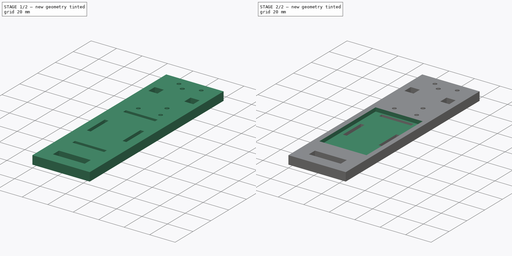
[diagram: build sequence overview — one tinted view per stage of 2, left to right]
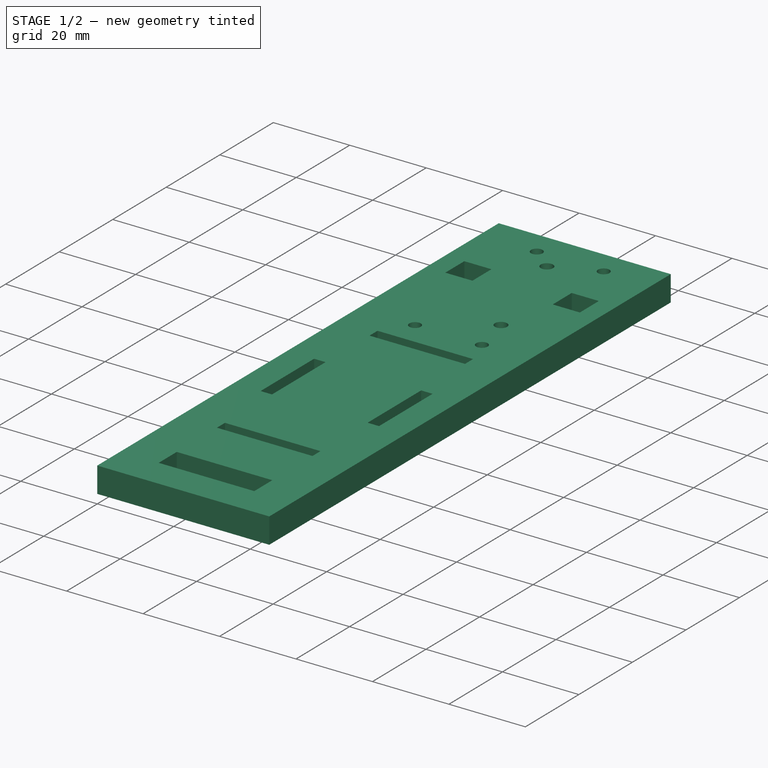
[diagram: stage 1 of 2 — iso view after this stage's code; geometry added in this stage tinted green]
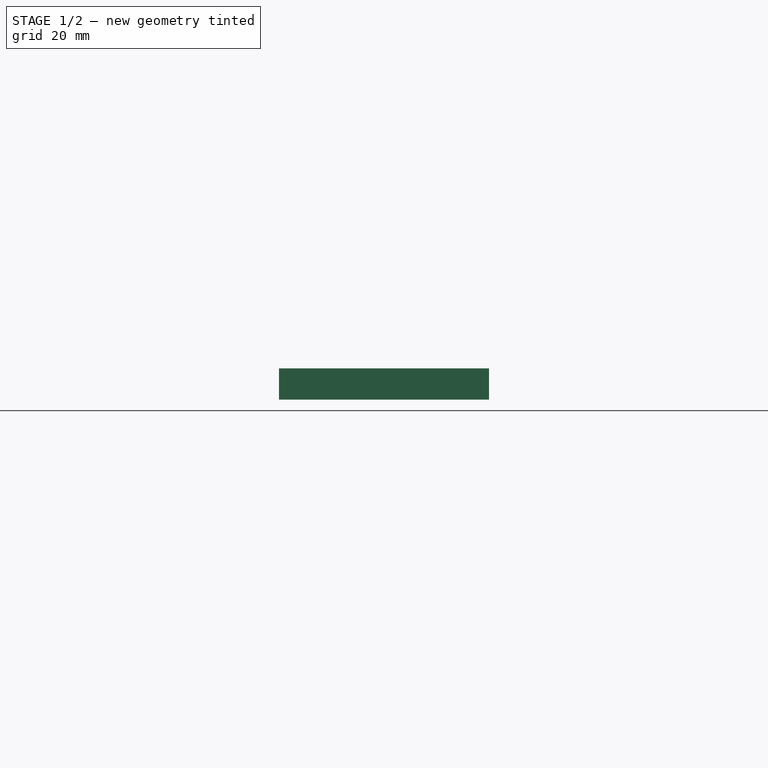
[diagram: stage 1 of 2 — front view after this stage's code; geometry added in this stage tinted green]
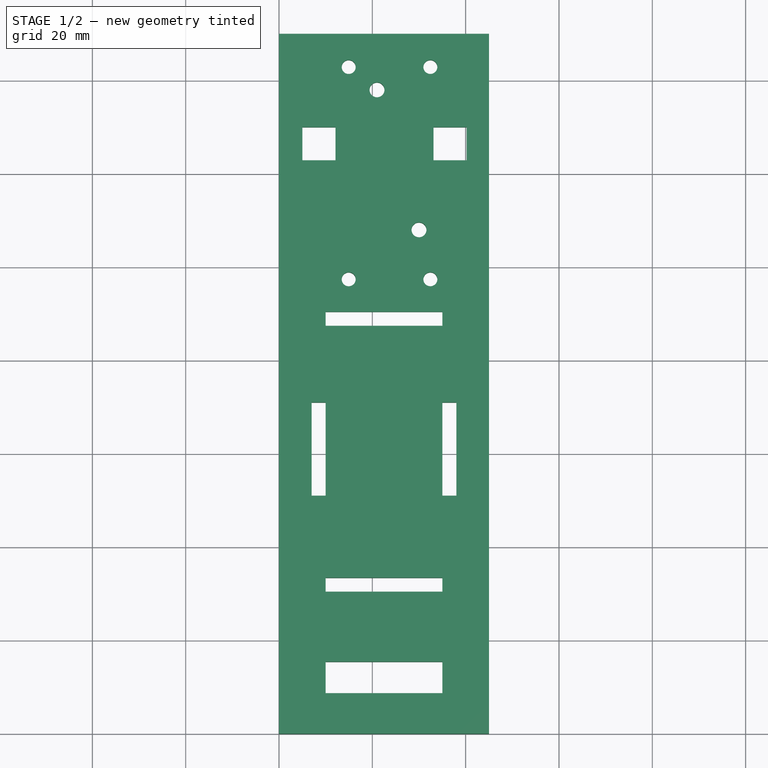
[diagram: stage 1 of 2 — top view after this stage's code; geometry added in this stage tinted green]
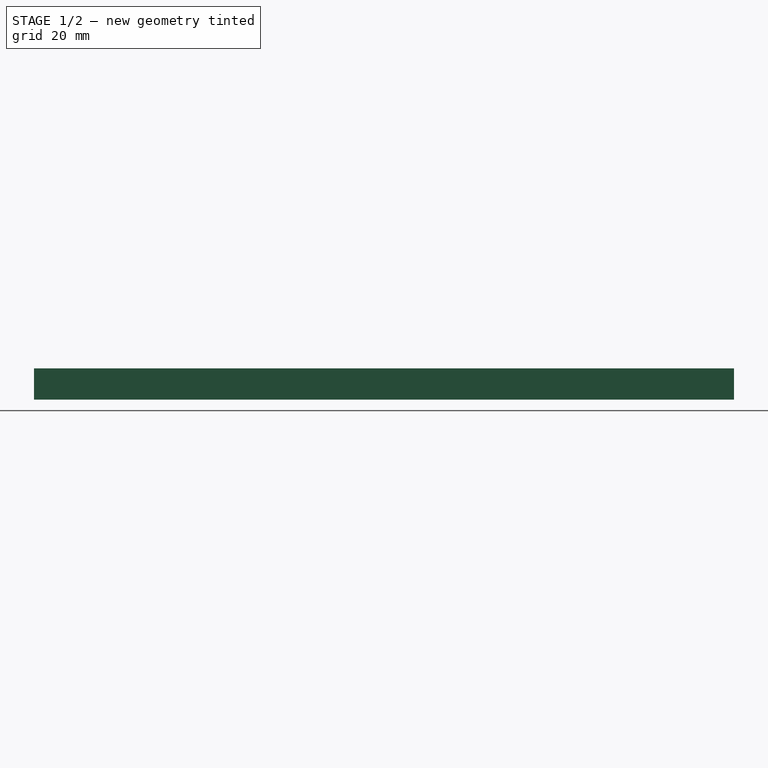
[diagram: stage 1 of 2 — right view after this stage's code; geometry added in this stage tinted green]
FCSTD DOCUMENT  (FreeCAD 0.18R16117 (Git))
Label: sled
License: All rights reserved
LicenseURL: http://en.wikipedia.org/wiki/All_rights_reserved
objects: Sketcher::SketchObject×2, PartDesign::Pad×1, PartDesign::Pocket×1, PartDesign::Body×1
note: 7 computed .brp shape members not serialized (recipe doc carries the construction recipe); baked Part::Feature solids carry a one-line shape summary decoded from their .brp

FEATURE [Sketcher::SketchObject] Sketch
  MapMode = 5
  Support = -> [XY_Plane]
  sketch-geometry (41):
    g0: LineSegment StartX=0 StartY=0 StartZ=0 EndX=45 EndY=0 EndZ=0
    g1: LineSegment StartX=45 StartY=0 StartZ=0 EndX=45 EndY=150 EndZ=0
    g2: LineSegment StartX=45 StartY=150 StartZ=0 EndX=0 EndY=150 EndZ=0
    g3: LineSegment StartX=0 StartY=150 StartZ=0 EndX=0 EndY=0 EndZ=0
    g4: Circle CenterX=14.9331 CenterY=142.9 CenterZ=0 NormalX=0 NormalY=0 NormalZ=1 AngleXU=0 Radius=1.5
    g5: Circle CenterX=14.9331 CenterY=97.3995 CenterZ=0 NormalX=0 NormalY=0 NormalZ=1 AngleXU=0 Radius=1.5
    g6: Circle CenterX=32.4331 CenterY=97.3995 CenterZ=0 NormalX=0 NormalY=0 NormalZ=1 AngleXU=0 Radius=1.5
    g7: Circle CenterX=32.4331 CenterY=142.9 CenterZ=0 NormalX=0 NormalY=0 NormalZ=1 AngleXU=0 Radius=1.5
    g8: LineSegment StartX=10 StartY=15.4272 StartZ=0 EndX=35 EndY=15.4272 EndZ=0
    g9: LineSegment StartX=35 StartY=15.4272 StartZ=0 EndX=35 EndY=8.67725 EndZ=0
    g10: LineSegment StartX=35 StartY=8.67725 StartZ=0 EndX=10 EndY=8.67725 EndZ=0
    g11: LineSegment StartX=10 StartY=8.67725 StartZ=0 EndX=10 EndY=15.4272 EndZ=0
    g12: LineSegment StartX=10 StartY=87.429 StartZ=0 EndX=35 EndY=87.429 EndZ=0
    g13: LineSegment StartX=35 StartY=87.429 StartZ=0 EndX=35 EndY=90.429 EndZ=0
    g14: LineSegment StartX=35 StartY=90.429 StartZ=0 EndX=10 EndY=90.429 EndZ=0
    g15: LineSegment StartX=10 StartY=90.429 StartZ=0 EndX=10 EndY=87.429 EndZ=0
    g16: LineSegment StartX=10 StartY=33.429 StartZ=0 EndX=35 EndY=33.429 EndZ=0
    g17: LineSegment StartX=35 StartY=33.429 StartZ=0 EndX=35 EndY=30.429 EndZ=0
    g18: LineSegment StartX=35 StartY=30.429 StartZ=0 EndX=10 EndY=30.429 EndZ=0
    g19: LineSegment StartX=10 StartY=30.429 StartZ=0 EndX=10 EndY=33.429 EndZ=0
    g20: LineSegment StartX=7 StartY=71.0195 StartZ=0 EndX=10 EndY=71.0195 EndZ=0
    g21: LineSegment StartX=10 StartY=71.0195 StartZ=0 EndX=10 EndY=51.0195 EndZ=0
    g22: LineSegment StartX=10 StartY=51.0195 StartZ=0 EndX=7 EndY=51.0195 EndZ=0
    g23: LineSegment StartX=7 StartY=51.0195 StartZ=0 EndX=7 EndY=71.0195 EndZ=0
    g24: LineSegment StartX=38 StartY=71.0195 StartZ=0 EndX=35 EndY=71.0195 EndZ=0
    g25: LineSegment StartX=35 StartY=71.0195 StartZ=0 EndX=35 EndY=51.0195 EndZ=0
    g26: LineSegment StartX=35 StartY=51.0195 StartZ=0 EndX=38 EndY=51.0195 EndZ=0
    g27: LineSegment StartX=38 StartY=51.0195 StartZ=0 EndX=38 EndY=71.0195 EndZ=0
    g28: LineSegment StartX=5 StartY=130 StartZ=0 EndX=12.1 EndY=130 EndZ=0
    g29: LineSegment StartX=12.1 StartY=130 StartZ=0 EndX=12.1 EndY=122.9 EndZ=0
    g30: LineSegment StartX=12.1 StartY=122.9 StartZ=0 EndX=5 EndY=122.9 EndZ=0
    g31: LineSegment StartX=5 StartY=122.9 StartZ=0 EndX=5 EndY=130 EndZ=0
    g32: LineSegment StartX=33.1 StartY=130 StartZ=0 EndX=40.2 EndY=130 EndZ=0
    g33: LineSegment StartX=40.2 StartY=130 StartZ=0 EndX=40.2 EndY=122.9 EndZ=0
    g34: LineSegment StartX=40.2 StartY=122.9 StartZ=0 EndX=33.1 EndY=122.9 EndZ=0
    g35: LineSegment StartX=33.1 StartY=122.9 StartZ=0 EndX=33.1 EndY=130 EndZ=0
    g36: Circle CenterX=21 CenterY=138 CenterZ=0 NormalX=0 NormalY=0 NormalZ=1 AngleXU=0 Radius=1.6
    g37: Circle CenterX=30 CenterY=108 CenterZ=0 NormalX=0 NormalY=0 NormalZ=1 AngleXU=0 Radius=1.6
    g38: LineSegment [constr] StartX=21 StartY=138 StartZ=0 EndX=30 EndY=108 EndZ=0
    g39: LineSegment [constr] StartX=21 StartY=108 StartZ=0 EndX=30 EndY=108 EndZ=0
    g40: LineSegment [constr] StartX=21 StartY=138 StartZ=0 EndX=21 EndY=108 EndZ=0
  constraints (112):
    c: Coincident(g0,g1)
    c: Coincident(g1,g2)
    c: Coincident(g2,g3)
    c: Coincident(g3,g0)
    c: Horizontal(g0)
    c: Horizontal(g2)
    c: Vertical(g1)
    c: Vertical(g3)
    c: Coincident(g0,g-1)
    c: DistanceY(g1,g1) = 150
    c: DistanceX(g0,g0) = 45
    c: Equal(g7,g4)
    c: Equal(g4,g5)
    c: Equal(g5,g6)
    c: DistanceX(g4,g7) = 17.5
    c: DistanceY(g6,g7) = 45.5
    c: Vertical(g5,g4)
    c: Horizontal(g4,g7)
    c: Horizontal(g5,g6)
    c: Vertical(g6,g7)
    c: Radius(g4) = 1.5
    c: Coincident(g8,g9)
    c: Coincident(g9,g10)
    c: Coincident(g10,g11)
    c: Coincident(g11,g8)
    c: Horizontal(g8)
    c: Horizontal(g10)
    c: Vertical(g9)
    c: Vertical(g11)
    c: DistanceY(g9,g9) = 6.75
    c: Coincident(g12,g13)
    c: Coincident(g13,g14)
    c: Coincident(g14,g15)
    c: Coincident(g15,g12)
    c: Horizontal(g12)
    c: Horizontal(g14)
    c: Vertical(g13)
    c: Vertical(g15)
    c: Coincident(g16,g17)
    c: Coincident(g17,g18)
    c: Coincident(g18,g19)
    c: Coincident(g19,g16)
    c: Horizontal(g16)
    c: Horizontal(g18)
    c: Vertical(g17)
    c: Vertical(g19)
    c: Equal(g12,g16)
    c: Equal(g13,g17)
    c: Vertical(g12,g16)
    c: DistanceY(g13,g13) = 3
    c: DistanceX(g14,g14) = 25
    c: DistanceY(g17,g13) = 60
    c: Coincident(g20,g21)
    c: Coincident(g21,g22)
    c: Coincident(g22,g23)
    c: Coincident(g23,g20)
    c: Horizontal(g20)
    c: Horizontal(g22)
    c: Vertical(g21)
    c: Vertical(g23)
    c: Coincident(g24,g25)
    c: Coincident(g25,g26)
    c: Coincident(g26,g27)
    c: Coincident(g27,g24)
    c: Horizontal(g24)
    c: Horizontal(g26)
    c: Vertical(g25)
    c: Vertical(g27)
    c: Horizontal(g24,g20)
    c: Horizontal(g21,g25)
    c: Equal(g20,g24)
    c: DistanceX(g2,g20) = 7
    c: DistanceX(g26,g26) = 3
    c: DistanceY(g27,g27) = 20
    c: DistanceX(g13,g0) = 10
    c: Coincident(g28,g29)
    c: Coincident(g29,g30)
    c: Coincident(g30,g31)
    c: Coincident(g31,g28)
    c: Horizontal(g28)
    c: Horizontal(g30)
    c: Vertical(g29)
    c: Vertical(g31)
    c: Coincident(g32,g33)
    c: Coincident(g33,g34)
    c: Coincident(g34,g35)
    c: Coincident(g35,g32)
    c: Horizontal(g32)
    c: Horizontal(g34)
    c: Vertical(g33)
    c: Vertical(g35)
    c: Horizontal(g28,g32)
    c: Equal(g32,g28)
    c: Equal(g29,g35)
    c: DistanceX(g28,g28) = 7.1
    c: DistanceY(g29,g29) = 7.1
    c: DistanceY(g32,g1) = 20
    c: DistanceX(g28,g32) = 21
    c: DistanceX(g32,g1) = 4.8
    c: Coincident(g38,g36)
    c: Coincident(g38,g37)
    c: Coincident(g39,g37)
    c: Coincident(g40,g36)
    c: Coincident(g39,g40)
    c: Horizontal(g39)
    c: Vertical(g40)
    c: DistanceY(g40,g40) = 30
    c: Equal(g37,g36)
    c: Radius(g37) = 1.6
    c: DistanceX(g39,g39) = 9
    c: DistanceY(g36,g2) = 12
    c: DistanceX(g37,g1) = 15
FEATURE [PartDesign::Pad] Pad
  Length = 6.7
  Length2 = 100
  Profile = -> Sketch
  Type = 0
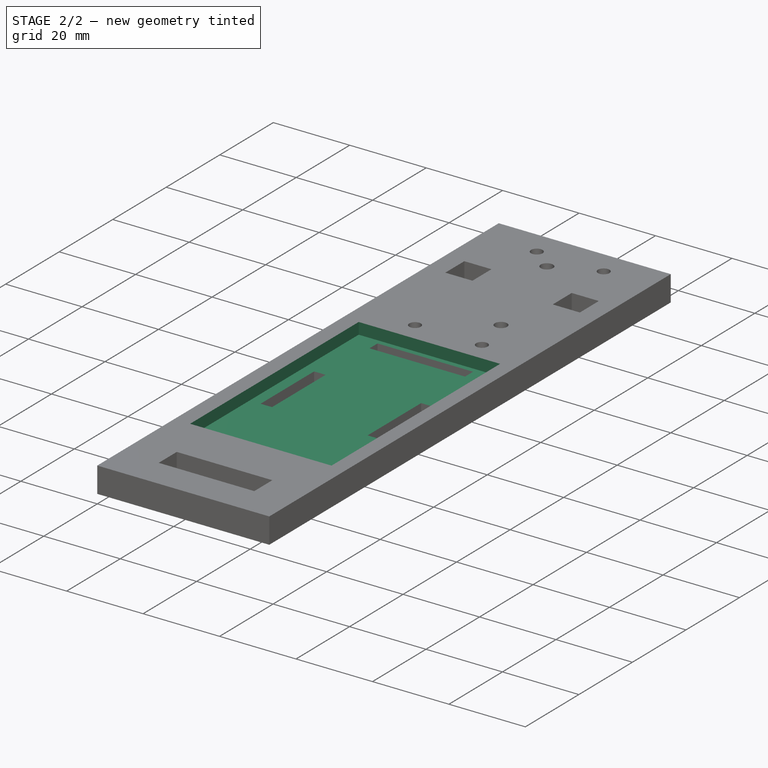
[diagram: stage 2 of 2 — iso view after this stage's code; geometry added in this stage tinted green]
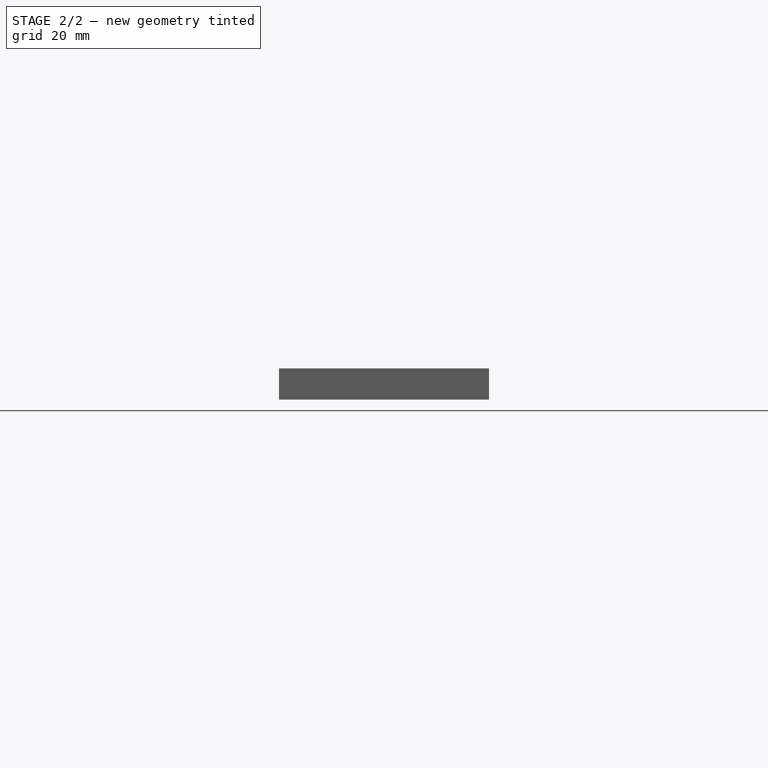
[diagram: stage 2 of 2 — front view after this stage's code; geometry added in this stage tinted green]
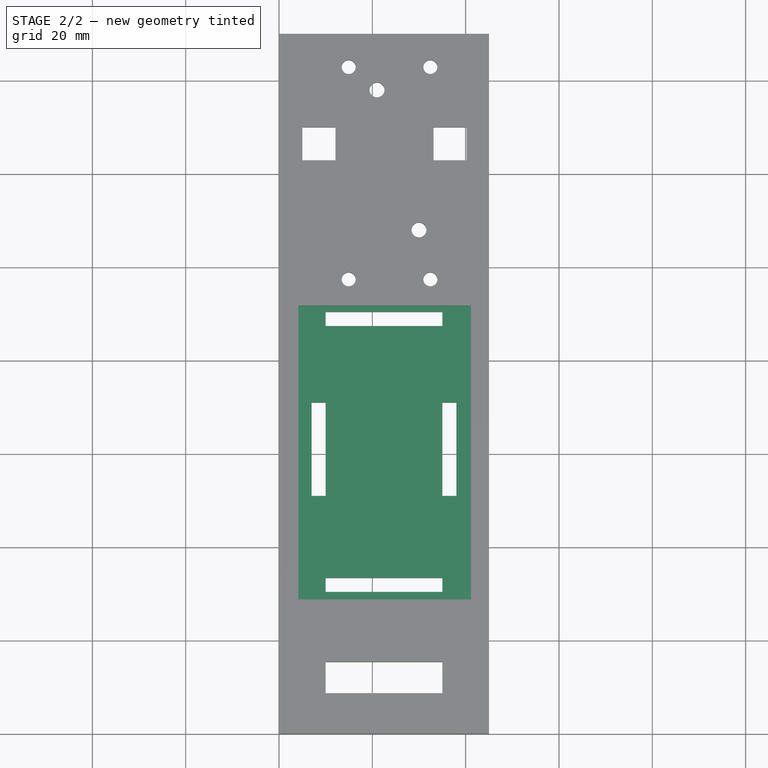
[diagram: stage 2 of 2 — top view after this stage's code; geometry added in this stage tinted green]
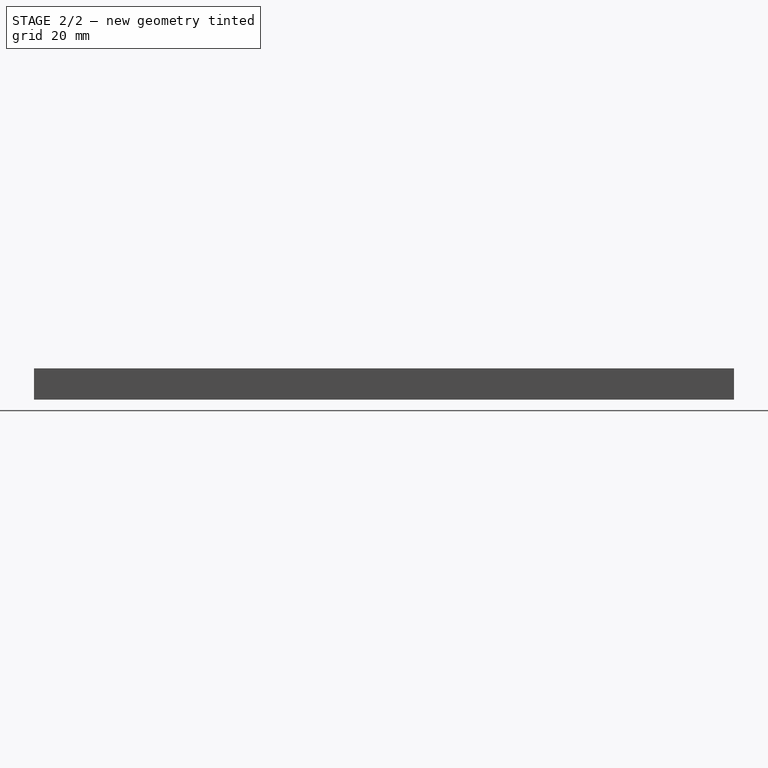
[diagram: stage 2 of 2 — right view after this stage's code; geometry added in this stage tinted green]
FEATURE [Sketcher::SketchObject] Sketch001
  MapMode = 5
  Placement = pos=(0,0,6.7) rot=(0,0,1;0rad)
  Support = -> [Pad]
  sketch-geometry (4):
    g0: LineSegment StartX=4.14095 StartY=91.7662 StartZ=0 EndX=41.141 EndY=91.7662 EndZ=0
    g1: LineSegment StartX=41.141 StartY=91.7662 StartZ=0 EndX=41.141 EndY=28.7662 EndZ=0
    g2: LineSegment StartX=41.141 StartY=28.7662 StartZ=0 EndX=4.14095 EndY=28.7662 EndZ=0
    g3: LineSegment StartX=4.14095 StartY=28.7662 StartZ=0 EndX=4.14095 EndY=91.7662 EndZ=0
  constraints (10):
    c: Coincident(g0,g1)
    c: Coincident(g1,g2)
    c: Coincident(g2,g3)
    c: Coincident(g3,g0)
    c: Horizontal(g0)
    c: Horizontal(g2)
    c: Vertical(g1)
    c: Vertical(g3)
    c: DistanceX(g0,g0) = 37
    c: DistanceY(g1,g1) = 63
FEATURE [PartDesign::Pocket] Pocket
  BaseFeature = -> Pad
  Length = 3
  Length2 = 100
  Profile = -> Sketch001
  Type = 0
FEATURE [PartDesign::Body] Body
  Group = -> [Sketch,Pad,Sketch001,Pocket]
  Origin = -> Origin
  Tip = -> Pocket
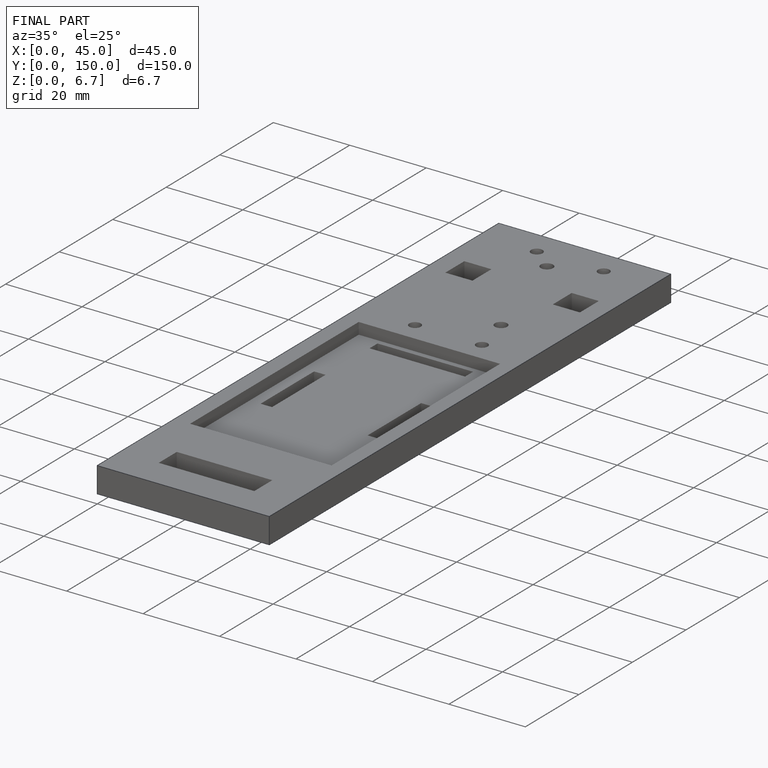
[diagram: finished part — iso view with bounding-box wireframe]
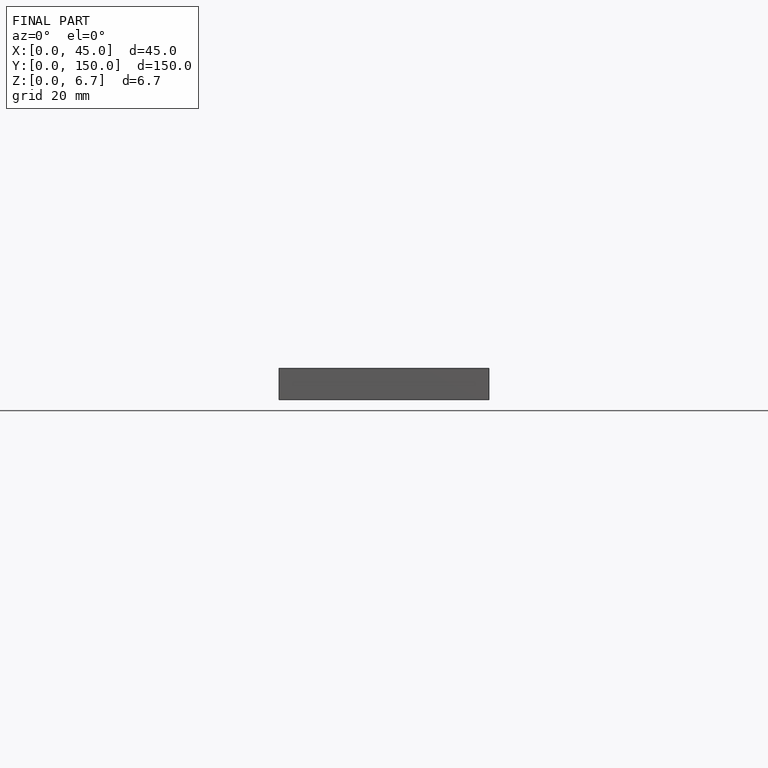
[diagram: finished part — front view with bounding-box wireframe]
